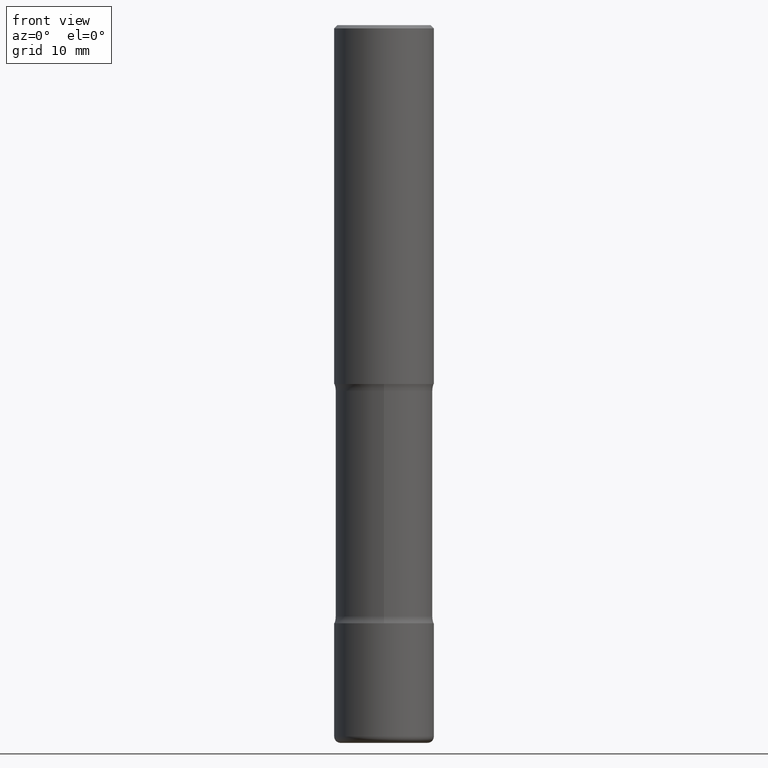
[diagram: clean part render]
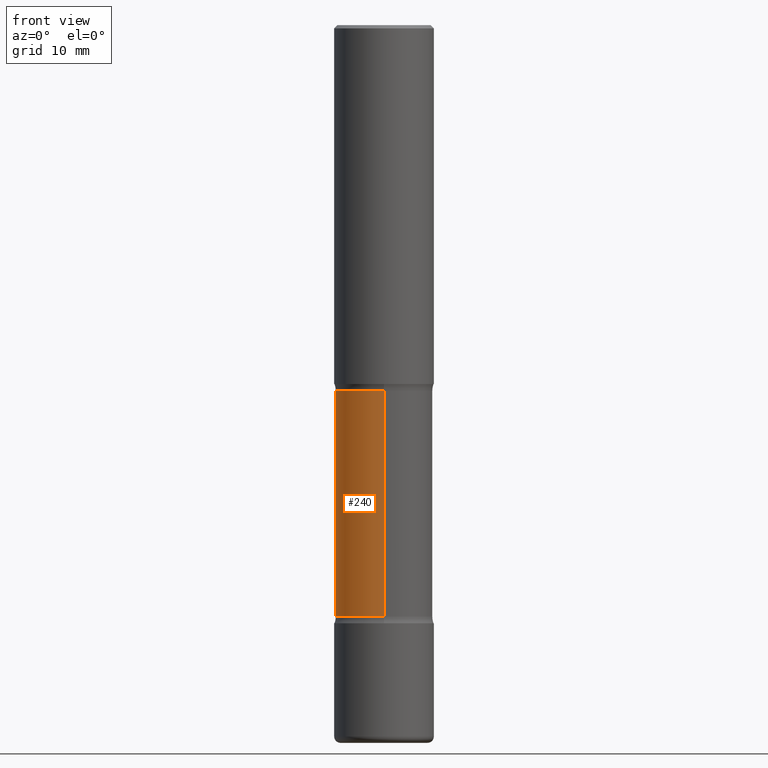
[diagram: same view with one face highlighted and labeled with its STEP entity id]
A machine part, front view. The second image highlights one B-rep face of the part: STEP entity #240.
In plain terms, the highlighted cylindrical surface (partial cylindrical patch) has radius 7.747 mm, axis along (0, -0, -1).
Its self-contained STEP definition (entity closure, byte-faithful):
#5 = ORIENTED_EDGE ( 'NONE', *, *, #199, .T. ) ;
#27 = EDGE_LOOP ( 'NONE', ( #56, #93, #5, #423 ) ) ;
#32 = EDGE_CURVE ( 'NONE', #71, #217, #350, .T. ) ;
#50 = VECTOR ( 'NONE', #442, 39.37007874015748143 ) ;
#56 = ORIENTED_EDGE ( 'NONE', *, *, #32, .F. ) ;
#71 = VERTEX_POINT ( 'NONE', #292 ) ;
#81 = CARTESIAN_POINT ( 'NONE',  ( 2.129803616694422892E-15, 0.3049999999999845057, -4.500000000000000888 ) ) ;
#92 = AXIS2_PLACEMENT_3D ( 'NONE', #436, #122, #514 ) ;
#93 = ORIENTED_EDGE ( 'NONE', *, *, #437, .T. ) ;
#103 = VECTOR ( 'NONE', #474, 39.37007874015748143 ) ;
#112 = CARTESIAN_POINT ( 'NONE',  ( 2.129803616694366488E-15, 0.3049999999999918887, -2.292646805273081512 ) ) ;
#122 = DIRECTION ( 'NONE',  ( 2.572644756724267881E-29, -3.309358139265528035E-15, -1.000000000000000000 ) ) ;
#132 = VERTEX_POINT ( 'NONE', #112 ) ;
#178 = CIRCLE ( 'NONE', #352, 0.3050000000000001599 ) ;
#199 = EDGE_CURVE ( 'NONE', #132, #369, #274, .T. ) ;
#217 = VERTEX_POINT ( 'NONE', #521 ) ;
#240 = ADVANCED_FACE ( 'NONE', ( #480 ), #269, .T. ) ;
#263 = CARTESIAN_POINT ( 'NONE',  ( 1.109999159073746203E-28, -1.557507362511094324E-14, -4.500000000000000000 ) ) ;
#269 = CYLINDRICAL_SURFACE ( 'NONE', #554, 0.3050000000000001044 ) ;
#274 = LINE ( 'NONE', #81, #103 ) ;
#292 = CARTESIAN_POINT ( 'NONE',  ( -2.118178756811908447E-15, -0.3050000000000084310, -2.292646805273079291 ) ) ;
#299 = DIRECTION ( 'NONE',  ( 2.572644756724267881E-29, -3.309358139265528035E-15, -1.000000000000000000 ) ) ;
#307 = DIRECTION ( 'NONE',  ( 2.572644756724267881E-29, -3.309358139265528035E-15, -1.000000000000000000 ) ) ;
#347 = CARTESIAN_POINT ( 'NONE',  ( 2.129803616694401592E-15, 0.3049999999999870592, -3.707353194726921153 ) ) ;
#350 = LINE ( 'NONE', #404, #50 ) ;
#352 = AXIS2_PLACEMENT_3D ( 'NONE', #444, #299, #432 ) ;
#369 = VERTEX_POINT ( 'NONE', #347 ) ;
#399 = CIRCLE ( 'NONE', #92, 0.3049999999999999933 ) ;
#403 = DIRECTION ( 'NONE',  ( 6.982962677686265133E-15, 1.000000000000000000, -3.582751467100671728E-15 ) ) ;
#404 = CARTESIAN_POINT ( 'NONE',  ( -2.092451889320206576E-15, -0.3050000000000156475, -4.499999999999999112 ) ) ;
#423 = ORIENTED_EDGE ( 'NONE', *, *, #515, .F. ) ;
#432 = DIRECTION ( 'NONE',  ( 6.982962677686266711E-15, 1.000000000000000000, -3.582751467100670940E-15 ) ) ;
#436 = CARTESIAN_POINT ( 'NONE',  ( 9.060792943217432011E-29, -1.295192146851765677E-14, -3.707353194726920265 ) ) ;
#437 = EDGE_CURVE ( 'NONE', #71, #132, #178, .T. ) ;
#442 = DIRECTION ( 'NONE',  ( 2.572644756724267881E-29, -3.309358139265528035E-15, -1.000000000000000000 ) ) ;
#444 = CARTESIAN_POINT ( 'NONE',  ( 5.421255968084691765E-29, -8.270151363907644823E-15, -2.292646805273080179 ) ) ;
#474 = DIRECTION ( 'NONE',  ( 2.572644756724267881E-29, -3.309358139265528035E-15, -1.000000000000000000 ) ) ;
#480 = FACE_OUTER_BOUND ( 'NONE', #27, .T. ) ;
#514 = DIRECTION ( 'NONE',  ( 6.982962677686266711E-15, 1.000000000000000000, -3.582751467100673306E-15 ) ) ;
#515 = EDGE_CURVE ( 'NONE', #217, #369, #399, .T. ) ;
#521 = CARTESIAN_POINT ( 'NONE',  ( -2.118178756811869004E-15, -0.3050000000000129274, -3.707353194726918932 ) ) ;
#554 = AXIS2_PLACEMENT_3D ( 'NONE', #263, #307, #403 ) ;